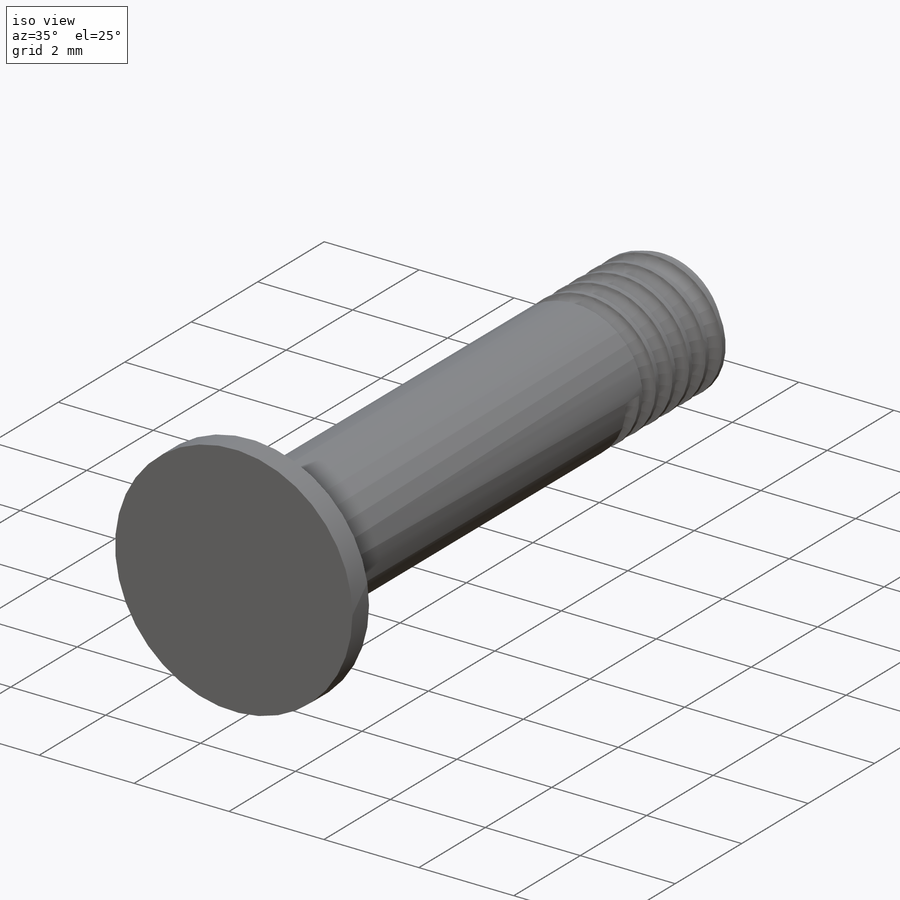
[diagram: iso view]
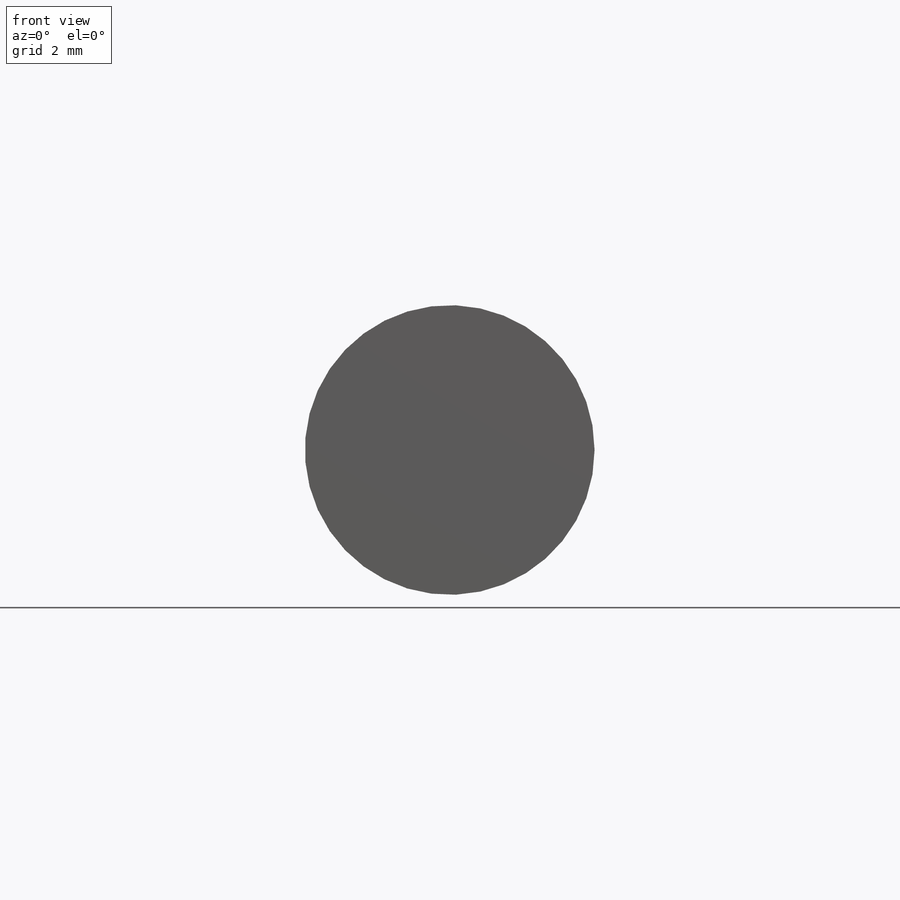
[diagram: front view]
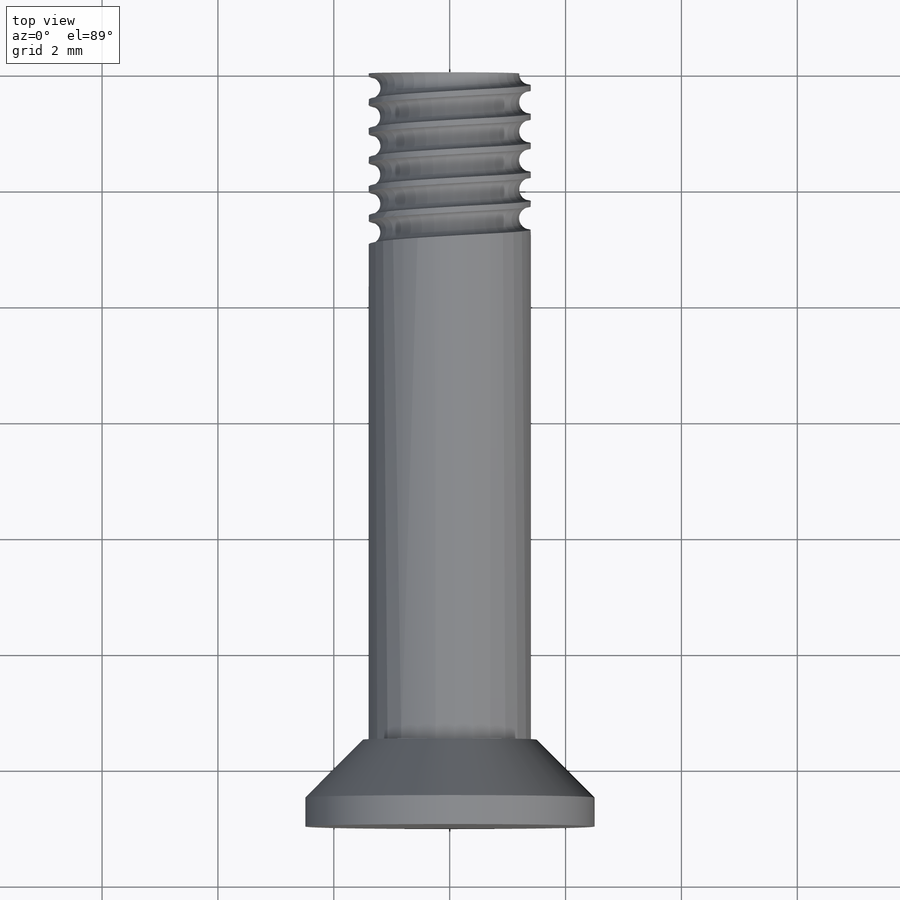
[diagram: top view]
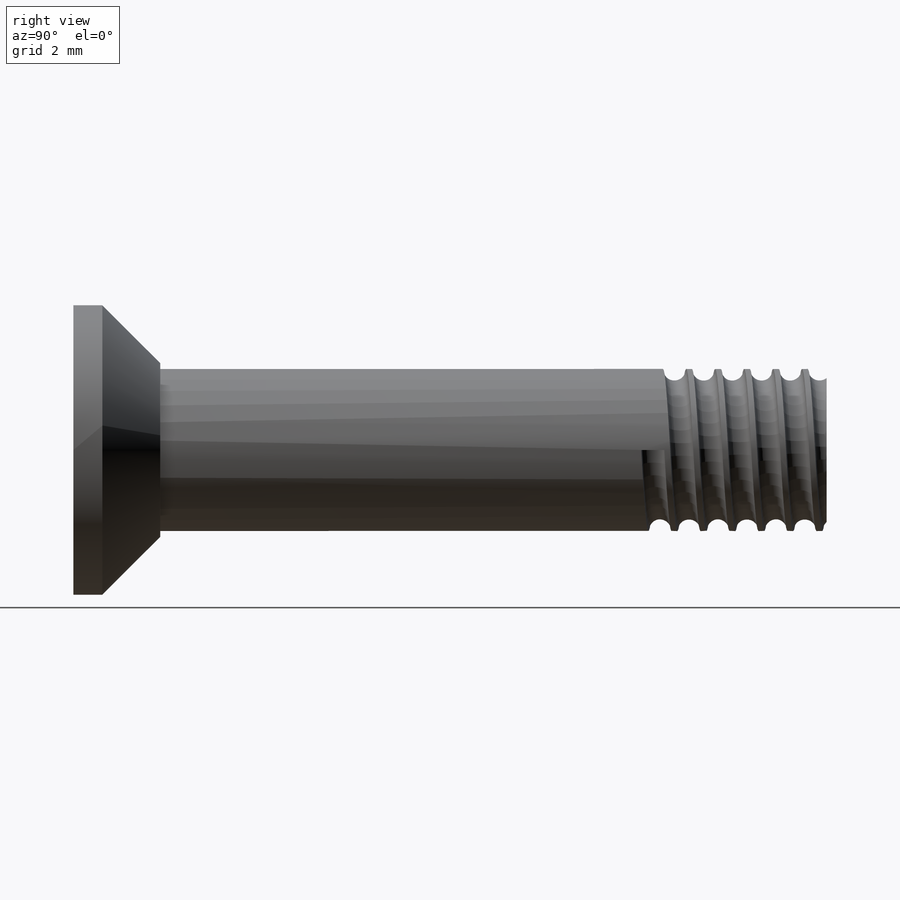
[diagram: right view]
SOLIDWORKS PART (.sldprt)
format: sldprt  version: not decoded by parser v0  size: 367,616 bytes
history: native  units: mm
features: sketch x4, extrude x2, material x1, helix x1, sweep x1, chamfer x1 (+16 scaffold rows collapsed)
feature tree (26):
  scaffold x16  (default folders/planes/origin — collapsed)
  material  "Material <not specified>"
  sketch  "Sketch1"  dims[D1=~6.371778mm]
  extrude  "Extrude1"  Depth=13mm
  sketch  "Sketch3"  dims[D1=2.0mm]
  extrude  "Extrude2"  Depth=1.5mm
  sketch  "Sketch4"
  helix  "Helix/Spiral1"  Pitch=3mm
  sketch  "Sketch5"  dims[D1=0.1mm]
  sweep  "Cut-Sweep1"
  chamfer  "Chamfer1"  Distance=1mm Angle=45deg
decode coverage: 7 of 9 modeling features carry decoded parameters
note: ~ marks probable driven/reference dimensions
note: suppression state not decoded; provenance and decode notes live in map.json
